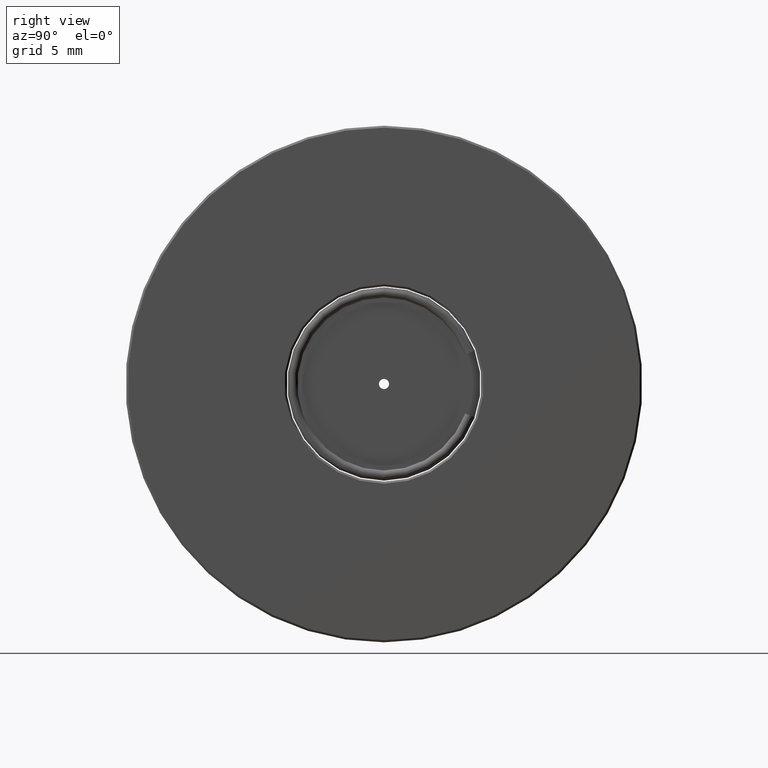
[diagram: clean part render]
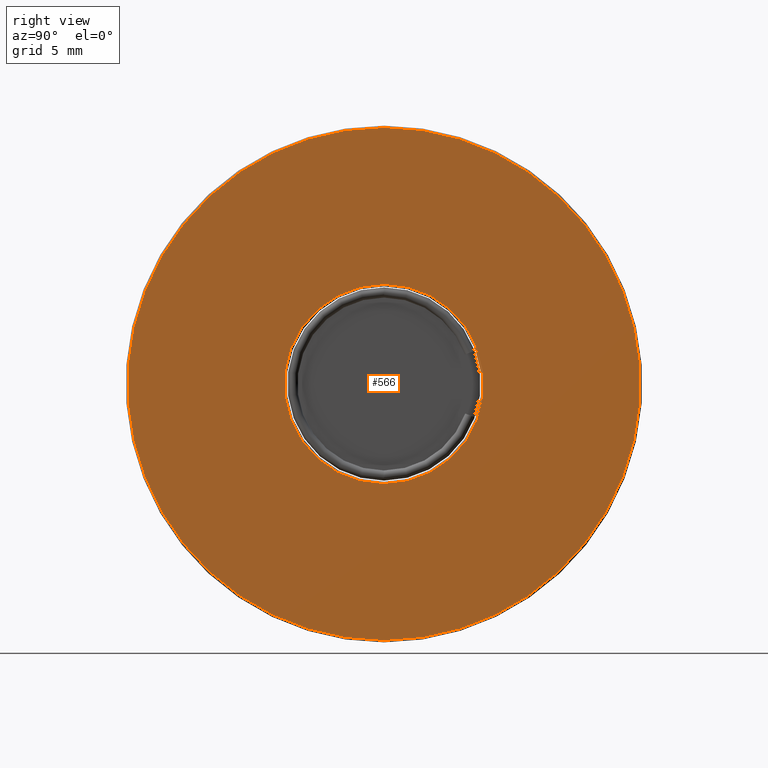
[diagram: same view with one face highlighted and labeled with its STEP entity id]
A machine part, right view. The second image highlights one B-rep face of the part: STEP entity #566.
In plain terms, the highlighted planar face has unit normal (1, 0, 0).
Its self-contained STEP definition (entity closure, byte-faithful):
#9 = DIRECTION ( 'NONE',  ( 0.0000000000000000000, 0.0000000000000000000, -1.000000000000000000 ) ) ;
#16 = DIRECTION ( 'NONE',  ( 0.0000000000000000000, 0.0000000000000000000, -1.000000000000000000 ) ) ;
#28 = ORIENTED_EDGE ( 'NONE', *, *, #112, .T. ) ;
#112 = EDGE_CURVE ( 'NONE', #400, #142, #820, .T. ) ;
#142 = VERTEX_POINT ( 'NONE', #641 ) ;
#144 = CARTESIAN_POINT ( 'NONE',  ( -2.434863851253203482, 1.436758841085141070, 25.39999999999999858 ) ) ;
#188 = EDGE_CURVE ( 'NONE', #142, #400, #683, .T. ) ;
#199 = DIRECTION ( 'NONE',  ( -1.000000000000000000, -0.0000000000000000000, -0.0000000000000000000 ) ) ;
#227 = CIRCLE ( 'NONE', #713, 4.899999999999997691 ) ;
#235 = ORIENTED_EDGE ( 'NONE', *, *, #745, .T. ) ;
#239 = ORIENTED_EDGE ( 'NONE', *, *, #477, .T. ) ;
#247 = DIRECTION ( 'NONE',  ( 1.000000000000000000, 0.0000000000000000000, 0.0000000000000000000 ) ) ;
#257 = VERTEX_POINT ( 'NONE', #334 ) ;
#304 = DIRECTION ( 'NONE',  ( -1.000000000000000000, -0.0000000000000000000, -0.0000000000000000000 ) ) ;
#325 = CARTESIAN_POINT ( 'NONE',  ( -2.434863851253203482, 1.436758841085141070, 25.39999999999999858 ) ) ;
#326 = CARTESIAN_POINT ( 'NONE',  ( -2.434863851253203482, 1.436758841085141736, 30.29999999999999716 ) ) ;
#334 = CARTESIAN_POINT ( 'NONE',  ( -2.434863851253203482, 1.436758841085141070, 20.50000000000000000 ) ) ;
#373 = CARTESIAN_POINT ( 'NONE',  ( -2.434863851253203482, 1.436758841085141070, 25.39999999999999858 ) ) ;
#392 = DIRECTION ( 'NONE',  ( 0.0000000000000000000, 0.0000000000000000000, -1.000000000000000000 ) ) ;
#400 = VERTEX_POINT ( 'NONE', #476 ) ;
#437 = DIRECTION ( 'NONE',  ( 0.0000000000000000000, 0.0000000000000000000, -1.000000000000000000 ) ) ;
#442 = FACE_BOUND ( 'NONE', #657, .T. ) ;
#451 = CARTESIAN_POINT ( 'NONE',  ( -2.434863851253203482, 1.436758841085141070, 25.39999999999999858 ) ) ;
#460 = DIRECTION ( 'NONE',  ( 1.000000000000000000, 0.0000000000000000000, 0.0000000000000000000 ) ) ;
#466 = CIRCLE ( 'NONE', #478, 4.899999999999997691 ) ;
#476 = CARTESIAN_POINT ( 'NONE',  ( -2.434863851253203482, 1.436758841085141070, 38.00000000000000711 ) ) ;
#477 = EDGE_CURVE ( 'NONE', #257, #752, #227, .T. ) ;
#478 = AXIS2_PLACEMENT_3D ( 'NONE', #451, #199, #9 ) ;
#492 = EDGE_LOOP ( 'NONE', ( #28, #669 ) ) ;
#566 = ADVANCED_FACE ( 'NONE', ( #442, #594 ), #579, .T. ) ;
#579 = PLANE ( 'NONE',  #796 ) ;
#594 = FACE_OUTER_BOUND ( 'NONE', #492, .T. ) ;
#641 = CARTESIAN_POINT ( 'NONE',  ( -2.434863851253203482, 1.436758841085142402, 12.79999999999999716 ) ) ;
#657 = EDGE_LOOP ( 'NONE', ( #239, #235 ) ) ;
#669 = ORIENTED_EDGE ( 'NONE', *, *, #188, .T. ) ;
#683 = CIRCLE ( 'NONE', #755, 12.60000000000000142 ) ;
#684 = CARTESIAN_POINT ( 'NONE',  ( -2.434863851253203482, 1.436758841085141070, 25.39999999999999858 ) ) ;
#709 = DIRECTION ( 'NONE',  ( 1.000000000000000000, 0.0000000000000000000, 0.0000000000000000000 ) ) ;
#713 = AXIS2_PLACEMENT_3D ( 'NONE', #684, #304, #754 ) ;
#745 = EDGE_CURVE ( 'NONE', #752, #257, #466, .T. ) ;
#752 = VERTEX_POINT ( 'NONE', #326 ) ;
#754 = DIRECTION ( 'NONE',  ( 0.0000000000000000000, 0.0000000000000000000, -1.000000000000000000 ) ) ;
#755 = AXIS2_PLACEMENT_3D ( 'NONE', #144, #460, #392 ) ;
#766 = AXIS2_PLACEMENT_3D ( 'NONE', #325, #709, #16 ) ;
#796 = AXIS2_PLACEMENT_3D ( 'NONE', #373, #247, #437 ) ;
#820 = CIRCLE ( 'NONE', #766, 12.60000000000000142 ) ;